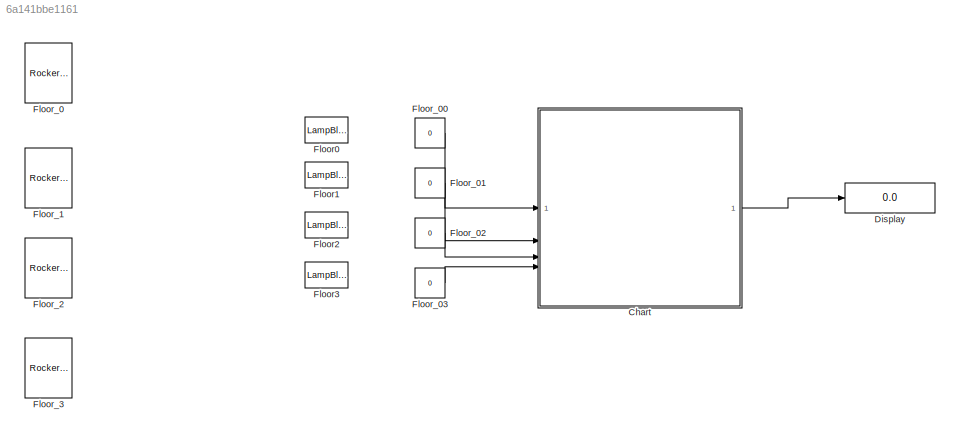
MODEL slx_6a141bbe1161
KIND model
CONFIG AbsTol = auto
CONFIG EnableMultiTasking = off
CONFIG FixedStep = auto
CONFIG MaxStep = auto
CONFIG MinStep = auto
CONFIG RelTol = 1e-3
CONFIG SampleTimeConstraint = Unconstrained
CONFIG SolverName = VariableStepAuto
CONFIG StartTime = 0.0
CONFIG StopTime = inf
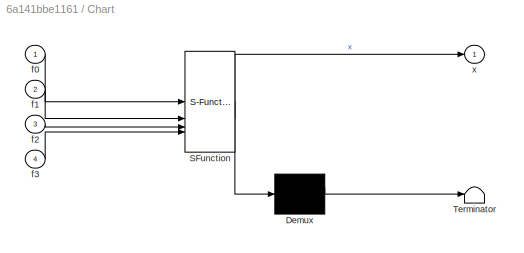
BLOCK [SubSystem] Chart
  ErrorFcn = Stateflow.Translate.translate
  PermitHierarchicalResolution = ExplicitOnly
  SFBlockType = Chart
  TreatAsAtomicUnit = on
BLOCK [Demux] Chart/ Demux 
  Outputs = 1
BLOCK [S-Function] Chart/ SFunction 
  EnableBusSupport = on
  FunctionName = sf_sfun
  PortCounts = [4 2]
  SFcnIsStateOwnerBlock = off
  SFunctionDeploymentMode = off
  Tag = Stateflow S-Function 3
BLOCK [Terminator] Chart/ Terminator 
BLOCK [Inport] Chart/f0
BLOCK [Inport] Chart/f1
  Port = 2
BLOCK [Inport] Chart/f2
  Port = 3
BLOCK [Inport] Chart/f3
  Port = 4
BLOCK [Outport] Chart/x
BLOCK [Display] Display
  Decimation = 1
BLOCK [LampBlock] Floor0
  LabelPosition = Hide
BLOCK [LampBlock] Floor1
  LabelPosition = Hide
BLOCK [LampBlock] Floor2
  LabelPosition = Hide
BLOCK [LampBlock] Floor3
  LabelPosition = Hide
BLOCK [RockerSwitchBlock] Floor_0
BLOCK [Constant] Floor_00
  Value = 0
BLOCK [Constant] Floor_01
  Value = 0
BLOCK [Constant] Floor_02
  Value = 0
BLOCK [Constant] Floor_03
  Value = 0
BLOCK [RockerSwitchBlock] Floor_1
BLOCK [RockerSwitchBlock] Floor_2
BLOCK [RockerSwitchBlock] Floor_3
LINE Chart:1 -> Display:1
LINE Floor_00:1 -> Chart:1
LINE Floor_01:1 -> Chart:2
LINE Floor_02:1 -> Chart:3
LINE Floor_03:1 -> Chart:4
CHART Chart states=12 transitions=25
  STATE_LABEL 'Floor_0\nentry:\nx=0;'
  STATE_LABEL 'open_0\ndr_open=1'
  STATE_LABEL 'close_0\ndr_open=0'
  STATE_LABEL '[x==0]'
  STATE_LABEL '[x~=0]'
  STATE_LABEL 'open_0\ndr_open=1'
  STATE_LABEL 'close_0\ndr_open=0'
  STATE_LABEL 'Floor_1\nentry:\nx=1;'
  STATE_LABEL 'open_1\ndr_open=1'
  STATE_LABEL 'close_1\ndr_open=0'
  STATE_LABEL '[x==1]'
  STATE_LABEL '[x~=1]'
  STATE_LABEL 'open_1\ndr_open=1'
  STATE_LABEL 'close_1\ndr_open=0'
  STATE_LABEL 'Floor_2\nentry:\nx=2;'
  STATE_LABEL 'open_1\ndr_open=1'
  STATE_LABEL 'close_1\ndr_open=0'
  STATE_LABEL '[x==2]'
  STATE_LABEL '[x~=2]'
  STATE_LABEL 'open_1\ndr_open=1'
  STATE_LABEL 'close_1\ndr_open=0'
  STATE_LABEL 'Floor_3\nentry:\nx=3;'
  STATE_LABEL 'open_1\ndr_open=1'
  STATE_LABEL 'close_1\ndr_open=0'
  STATE_LABEL '[x==3]'
  STATE_LABEL '[x~=3]'
  STATE_LABEL 'open_1\ndr_open=1'
  STATE_LABEL 'close_1\ndr_open=0'
CHART  states=0 transitions=0
